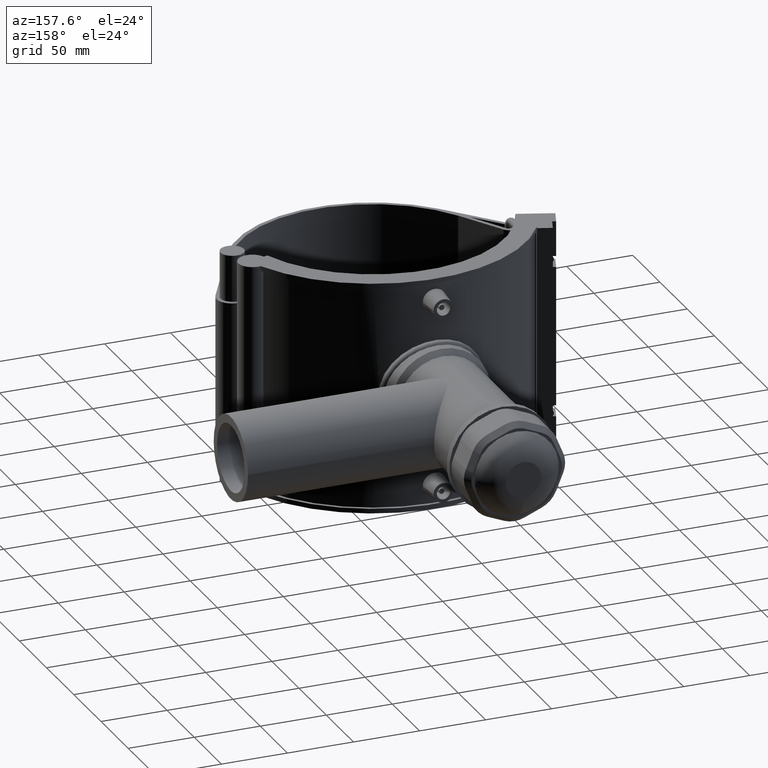
[diagram: clean part render]
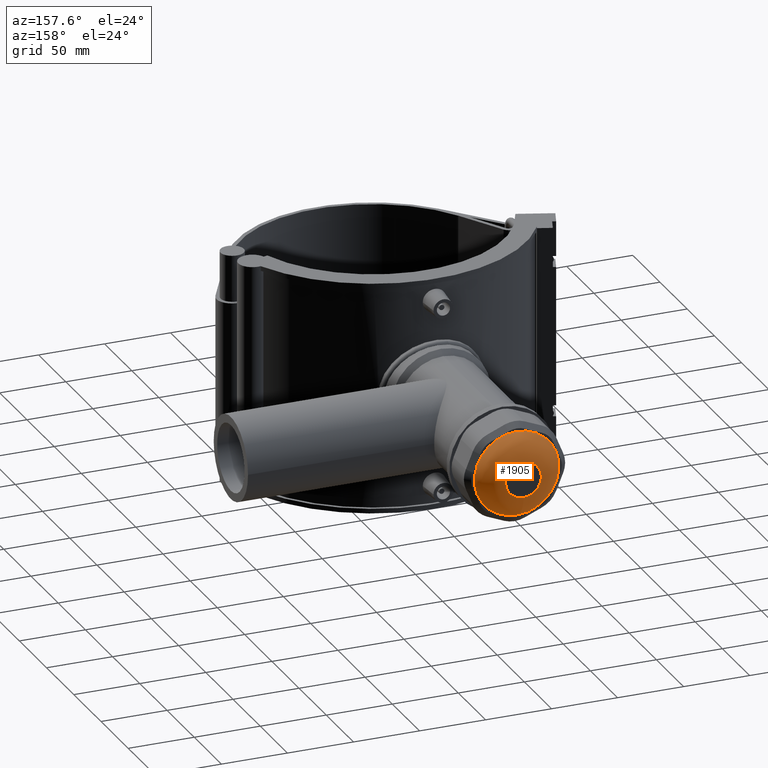
[diagram: same view with one face highlighted and labeled with its STEP entity id]
A machine part, auxiliary view. The second image highlights one B-rep face of the part: STEP entity #1905.
In plain terms, the highlighted face is a freeform B-spline surface patch.
Its self-contained STEP definition (entity closure, byte-faithful):
#26=(
BOUNDED_CURVE()
B_SPLINE_CURVE(2,(#3247,#3248,#3249),.UNSPECIFIED.,.F.,.F.)
B_SPLINE_CURVE_WITH_KNOTS((3,3),(-1.5707963267949,-0.390336904970329),
 .UNSPECIFIED.)
CURVE()
GEOMETRIC_REPRESENTATION_ITEM()
RATIONAL_B_SPLINE_CURVE((1.,0.830812854979991,1.))
REPRESENTATION_ITEM('')
);
#27=(
BOUNDED_SURFACE()
B_SPLINE_SURFACE(2,2,((#3218,#3219,#3220,#3221,#3222,#3223,#3224,#3225,
#3226),(#3227,#3228,#3229,#3230,#3231,#3232,#3233,#3234,#3235),(#3236,#3237,
#3238,#3239,#3240,#3241,#3242,#3243,#3244)),.UNSPECIFIED.,.F.,.T.,.F.)
B_SPLINE_SURFACE_WITH_KNOTS((3,3),(3,2,2,2,3),(0.390336904970329,1.5707963267949),
(-3.14159265358979,-1.5707963267949,0.,1.5707963267949,3.14159265358979),
 .UNSPECIFIED.)
GEOMETRIC_REPRESENTATION_ITEM()
RATIONAL_B_SPLINE_SURFACE(((1.,0.707106781186548,1.,0.707106781186548,1.,
0.707106781186548,1.,0.707106781186548,1.),(0.830812854979991,0.587473403653307,
0.830812854979991,0.587473403653307,0.830812854979991,0.587473403653307,
0.830812854979991,0.587473403653307,0.830812854979991),(1.,0.707106781186548,
1.,0.707106781186548,1.,0.707106781186548,1.,0.707106781186548,1.)))
REPRESENTATION_ITEM('')
SURFACE()
);
#484=FACE_OUTER_BOUND('',#613,.T.);
#613=EDGE_LOOP('',(#1393,#1394,#1395,#1396));
#757=CIRCLE('',#2051,32.);
#759=CIRCLE('',#2054,13.5043815999573);
#868=VERTEX_POINT('',#3213);
#870=VERTEX_POINT('',#3245);
#1070=EDGE_CURVE('',#868,#868,#757,.T.);
#1072=EDGE_CURVE('',#870,#870,#759,.T.);
#1073=EDGE_CURVE('',#870,#868,#26,.T.);
#1393=ORIENTED_EDGE('',*,*,#1072,.T.);
#1394=ORIENTED_EDGE('',*,*,#1073,.T.);
#1395=ORIENTED_EDGE('',*,*,#1070,.T.);
#1396=ORIENTED_EDGE('',*,*,#1073,.F.);
#1905=ADVANCED_FACE('',(#484),#27,.T.);
#2051=AXIS2_PLACEMENT_3D('',#3214,#2365,#2366);
#2054=AXIS2_PLACEMENT_3D('',#3246,#2371,#2372);
#2365=DIRECTION('center_axis',(0.,1.,3.06161699786838E-16));
#2366=DIRECTION('ref_axis',(1.,0.,0.));
#2371=DIRECTION('center_axis',(0.,-1.,-3.06161699786838E-16));
#2372=DIRECTION('ref_axis',(-6.12323399573676E-17,-3.28848238301759E-16,
1.));
#3213=CARTESIAN_POINT('',(5.8783046359073E-15,264.61,-32.));
#3214=CARTESIAN_POINT('Origin',(0.,264.61,5.03972774019115E-14));
#3218=CARTESIAN_POINT('Ctrl Pts',(1.95943487863576E-15,264.61,-32.));
#3219=CARTESIAN_POINT('Ctrl Pts',(32.,264.61,-31.9999999999999));
#3220=CARTESIAN_POINT('Ctrl Pts',(32.,264.61,5.23567122805472E-14));
#3221=CARTESIAN_POINT('Ctrl Pts',(32.,264.61,32.0000000000001));
#3222=CARTESIAN_POINT('Ctrl Pts',(-1.95943487863576E-15,264.61,32.0000000000001));
#3223=CARTESIAN_POINT('Ctrl Pts',(-32.,264.61,32.));
#3224=CARTESIAN_POINT('Ctrl Pts',(-32.,264.61,4.84378425232757E-14));
#3225=CARTESIAN_POINT('Ctrl Pts',(-32.,264.61,-32.));
#3226=CARTESIAN_POINT('Ctrl Pts',(1.95943487863576E-15,264.61,-32.));
#3227=CARTESIAN_POINT('Ctrl Pts',(1.64728155551936E-15,277.,-26.9021493652906));
#3228=CARTESIAN_POINT('Ctrl Pts',(26.9021493652906,277.,-26.9021493652906));
#3229=CARTESIAN_POINT('Ctrl Pts',(26.9021493652906,277.,5.58379024177897E-14));
#3230=CARTESIAN_POINT('Ctrl Pts',(26.9021493652906,277.,26.9021493652907));
#3231=CARTESIAN_POINT('Ctrl Pts',(-1.64728155551936E-15,277.,26.9021493652907));
#3232=CARTESIAN_POINT('Ctrl Pts',(-26.9021493652906,277.,26.9021493652907));
#3233=CARTESIAN_POINT('Ctrl Pts',(-26.9021493652906,277.,5.2543339306751E-14));
#3234=CARTESIAN_POINT('Ctrl Pts',(-26.9021493652906,277.,-26.9021493652906));
#3235=CARTESIAN_POINT('Ctrl Pts',(1.64728155551936E-15,277.,-26.9021493652906));
#3236=CARTESIAN_POINT('Ctrl Pts',(8.26904885042602E-16,277.,-13.5043815999572));
#3237=CARTESIAN_POINT('Ctrl Pts',(13.5043815999572,277.,-13.5043815999572));
#3238=CARTESIAN_POINT('Ctrl Pts',(13.5043815999572,277.,5.5017525747313E-14));
#3239=CARTESIAN_POINT('Ctrl Pts',(13.5043815999572,277.,13.5043815999573));
#3240=CARTESIAN_POINT('Ctrl Pts',(-8.26904885042602E-16,277.,13.5043815999573));
#3241=CARTESIAN_POINT('Ctrl Pts',(-13.5043815999572,277.,13.5043815999573));
#3242=CARTESIAN_POINT('Ctrl Pts',(-13.5043815999572,277.,5.33637159772278E-14));
#3243=CARTESIAN_POINT('Ctrl Pts',(-13.5043815999572,277.,-13.5043815999572));
#3244=CARTESIAN_POINT('Ctrl Pts',(8.26904885042602E-16,277.,-13.5043815999572));
#3245=CARTESIAN_POINT('',(2.48071465512781E-15,277.,-13.5043815999572));
#3246=CARTESIAN_POINT('Origin',(0.,277.,5.41906208622704E-14));
#3247=CARTESIAN_POINT('Ctrl Pts',(8.26904885042602E-16,277.,-13.5043815999572));
#3248=CARTESIAN_POINT('Ctrl Pts',(1.64728155551936E-15,277.,-26.9021493652906));
#3249=CARTESIAN_POINT('Ctrl Pts',(1.95943487863576E-15,264.61,-32.));